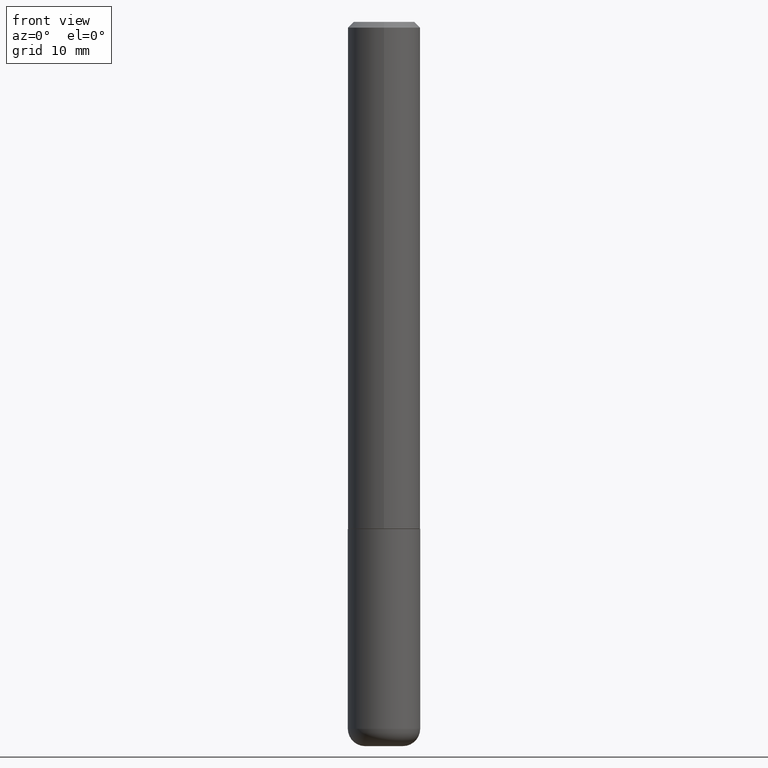
[diagram: clean part render]
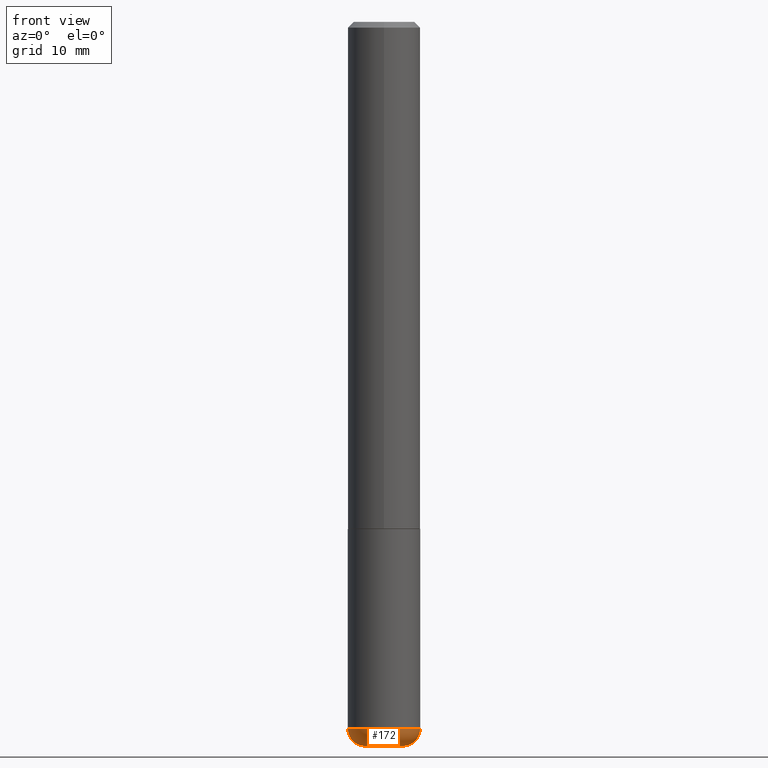
[diagram: same view with one face highlighted and labeled with its STEP entity id]
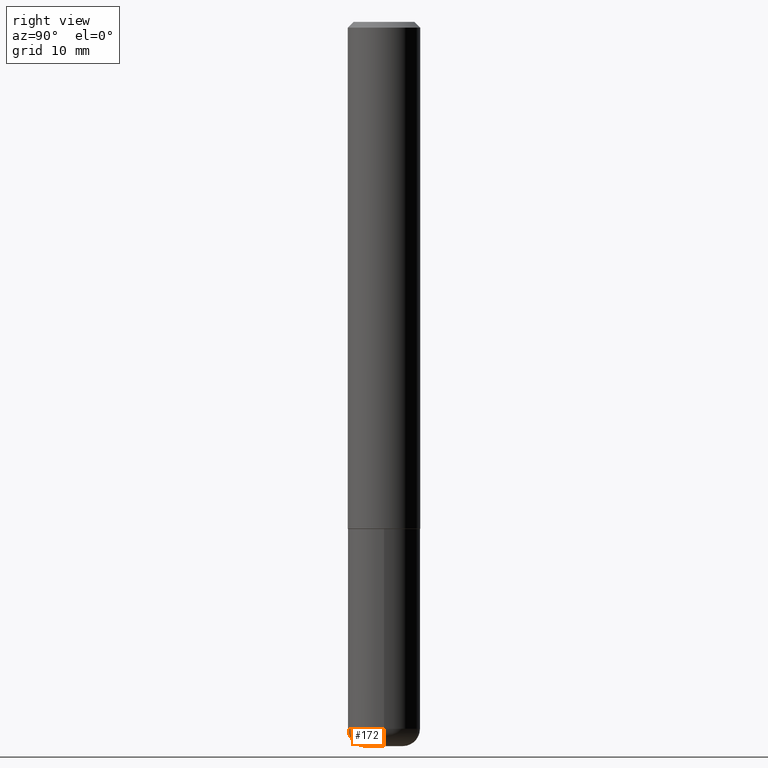
[diagram: same view with one face highlighted and labeled with its STEP entity id]
A machine part, front view. The second image highlights one B-rep face of the part: STEP entity #172.
A second angle (right view) of the same face is appended — the face is thin or edge-on in the first view.
In plain terms, the highlighted toroidal blend (fillet) surface has major radius 1.651 mm and minor (blend) radius 1.524 mm.
Its self-contained STEP definition (entity closure, byte-faithful):
#13 = CARTESIAN_POINT ( 'NONE',  ( 0.1249999999999999861, -9.392084801488058387E-15, -2.440000000000000391 ) ) ;
#14 = ORIENTED_EDGE ( 'NONE', *, *, #226, .T. ) ;
#16 = CIRCLE ( 'NONE', #134, 0.06500000000000000222 ) ;
#34 = DIRECTION ( 'NONE',  ( -2.445468806185136597E-29, 3.491481338843145583E-15, 1.000000000000000000 ) ) ;
#39 = DIRECTION ( 'NONE',  ( -2.445468806185136597E-29, 3.491481338843145583E-15, 1.000000000000000000 ) ) ;
#67 = CIRCLE ( 'NONE', #165, 0.1250000000000000000 ) ;
#70 = DIRECTION ( 'NONE',  ( 1.000000000000000000, -6.982962677686265133E-15, 4.883557194083112340E-29 ) ) ;
#95 = EDGE_CURVE ( 'NONE', #334, #380, #389, .T. ) ;
#96 = ORIENTED_EDGE ( 'NONE', *, *, #321, .T. ) ;
#107 = DIRECTION ( 'NONE',  ( 7.105427357601001859E-15, 1.000000000000000000, -3.491481338843145583E-15 ) ) ;
#112 = DIRECTION ( 'NONE',  ( -6.982962677686266711E-15, -1.000000000000000000, 3.491481338843145583E-15 ) ) ;
#115 = CARTESIAN_POINT ( 'NONE',  ( 0.06500000000000000222, -9.182595921157471648E-15, -2.500000000000000000 ) ) ;
#132 = DIRECTION ( 'NONE',  ( -2.445468806185136597E-29, 3.491481338843145583E-15, 1.000000000000000000 ) ) ;
#134 = AXIS2_PLACEMENT_3D ( 'NONE', #387, #39, #296 ) ;
#155 = EDGE_LOOP ( 'NONE', ( #315, #14, #96, #337 ) ) ;
#164 = DIRECTION ( 'NONE',  ( 1.000000000000000000, -6.982962677686262766E-15, 0.000000000000000000 ) ) ;
#165 = AXIS2_PLACEMENT_3D ( 'NONE', #322, #34, #164 ) ;
#172 = ADVANCED_FACE ( 'NONE', ( #350 ), #189, .T. ) ;
#189 = TOROIDAL_SURFACE ( 'NONE', #377, 0.06500000000000000222, 0.05999999999999995615 ) ;
#195 = CARTESIAN_POINT ( 'NONE',  ( 5.966943887091733341E-29, -8.519214466777275048E-15, -2.440000000000000391 ) ) ;
#206 = DIRECTION ( 'NONE',  ( 1.000000000000000000, -6.982962677686272233E-15, 0.000000000000000000 ) ) ;
#211 = CIRCLE ( 'NONE', #253, 0.05999999999999996309 ) ;
#220 = EDGE_CURVE ( 'NONE', #380, #394, #67, .T. ) ;
#226 = EDGE_CURVE ( 'NONE', #334, #306, #16, .T. ) ;
#231 = DIRECTION ( 'NONE',  ( -1.000000000000000000, 7.105427357600995548E-15, 0.000000000000000000 ) ) ;
#237 = AXIS2_PLACEMENT_3D ( 'NONE', #291, #107, #231 ) ;
#253 = AXIS2_PLACEMENT_3D ( 'NONE', #393, #112, #206 ) ;
#271 = CARTESIAN_POINT ( 'NONE',  ( -0.06500000000000000222, -7.948943307970475008E-15, -2.500000000000000000 ) ) ;
#291 = CARTESIAN_POINT ( 'NONE',  ( -0.06500000000000000222, -8.057361688533210306E-15, -2.440000000000000391 ) ) ;
#296 = DIRECTION ( 'NONE',  ( 1.000000000000000000, -6.982962677686273810E-15, 0.000000000000000000 ) ) ;
#306 = VERTEX_POINT ( 'NONE', #115 ) ;
#315 = ORIENTED_EDGE ( 'NONE', *, *, #95, .F. ) ;
#321 = EDGE_CURVE ( 'NONE', #306, #394, #211, .T. ) ;
#322 = CARTESIAN_POINT ( 'NONE',  ( 5.966943887091733341E-29, -8.519214466777275048E-15, -2.440000000000000391 ) ) ;
#334 = VERTEX_POINT ( 'NONE', #271 ) ;
#337 = ORIENTED_EDGE ( 'NONE', *, *, #220, .F. ) ;
#350 = FACE_OUTER_BOUND ( 'NONE', #155, .T. ) ;
#377 = AXIS2_PLACEMENT_3D ( 'NONE', #195, #132, #70 ) ;
#380 = VERTEX_POINT ( 'NONE', #399 ) ;
#387 = CARTESIAN_POINT ( 'NONE',  ( 6.113672015462842613E-29, -8.728703347107864943E-15, -2.500000000000000000 ) ) ;
#389 = CIRCLE ( 'NONE', #237, 0.05999999999999996309 ) ;
#393 = CARTESIAN_POINT ( 'NONE',  ( 0.06500000000000000222, -8.973107040826881753E-15, -2.440000000000000391 ) ) ;
#394 = VERTEX_POINT ( 'NONE', #13 ) ;
#399 = CARTESIAN_POINT ( 'NONE',  ( -0.1249999999999999861, -7.631036047077151393E-15, -2.440000000000000391 ) ) ;